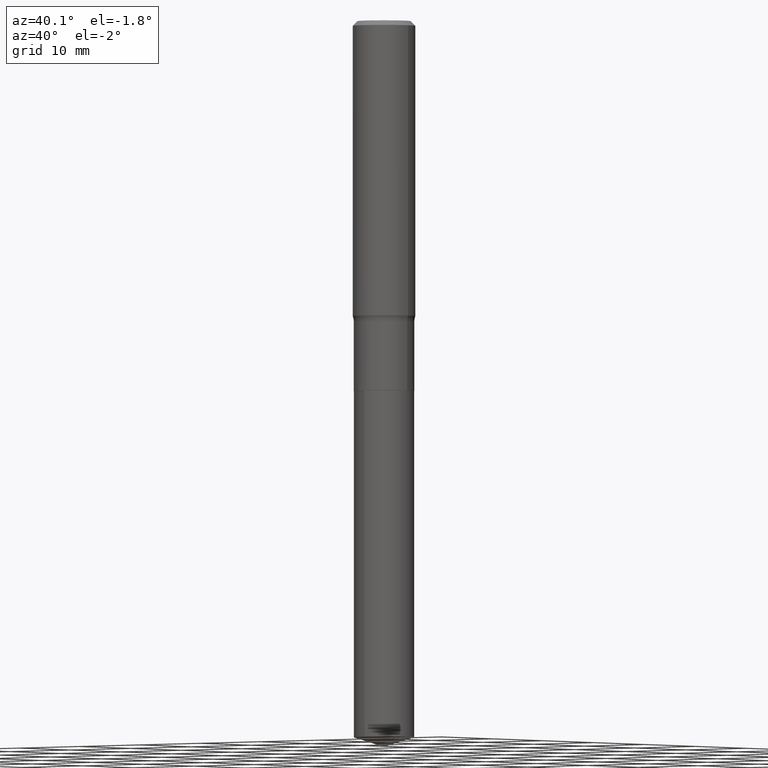
[diagram: clean part render]
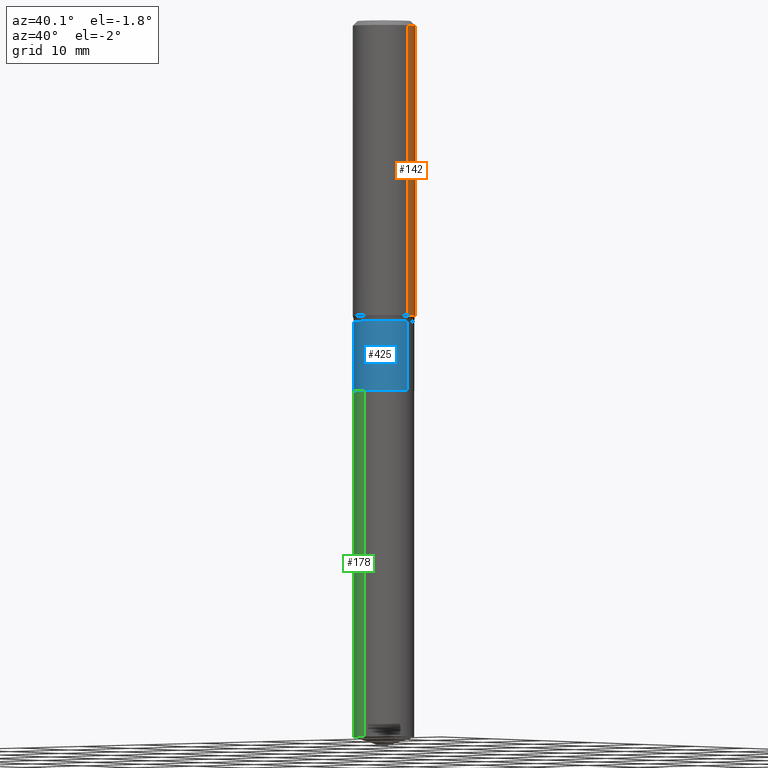
[diagram: same view with three faces highlighted in distinct colors, each labeled with its STEP entity id]
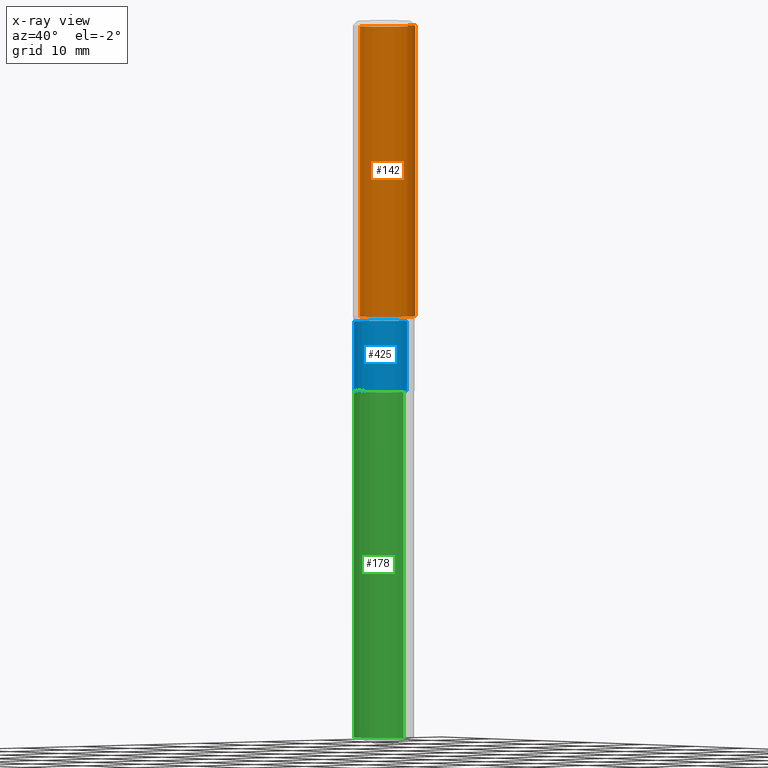
[diagram: x-ray of the same camera — body ghosted, the three highlighted faces saturated]
A machine part, auxiliary view with three faces highlighted in distinct colors.
The next image is the same camera in x-ray (body ghosted, the three faces saturated) — at least one of them is partly hidden behind the body in this view.
Their STEP definitions:

[orange] entity #142 — the highlighted cylindrical surface (edge-blend (fillet) strip) has radius 3.9688 mm, axis along (-0, 0, 1).
#4 = CARTESIAN_POINT ( 'NONE',  ( 3.603318810622414011E-29, -5.144584283132411729E-15, -1.473467500999733115 ) ) ;
#5 = CARTESIAN_POINT ( 'NONE',  ( 0.000000000000000000, 0.000000000000000000, 0.000000000000000000 ) ) ;
#15 = CARTESIAN_POINT ( 'NONE',  ( -0.1562500000000000000, -1.502984913880617145E-15, -0.02343750000000013878 ) ) ;
#16 = DIRECTION ( 'NONE',  ( 1.000000000000000000, -6.982962677686266711E-15, 0.000000000000000000 ) ) ;
#19 = EDGE_CURVE ( 'NONE', #161, #153, #341, .T. ) ;
#35 = CYLINDRICAL_SURFACE ( 'NONE', #331, 0.1562500000000000833 ) ;
#42 = ORIENTED_EDGE ( 'NONE', *, *, #19, .T. ) ;
#61 = CIRCLE ( 'NONE', #367, 0.1562500000000000000 ) ;
#86 = CARTESIAN_POINT ( 'NONE',  ( -0.1562500000000000833, 1.110223024625157132E-15, -7.685836078523293962E-30 ) ) ;
#95 = CARTESIAN_POINT ( 'NONE',  ( 0.1562500000000000000, -1.172919512267615999E-15, -0.02343750000000013878 ) ) ;
#122 = DIRECTION ( 'NONE',  ( -2.445468806185136597E-29, 3.491481338843145583E-15, 1.000000000000000000 ) ) ;
#123 = DIRECTION ( 'NONE',  ( -2.445468806185136597E-29, 3.491481338843145583E-15, 1.000000000000000000 ) ) ;
#125 = DIRECTION ( 'NONE',  ( -2.445468806185136597E-29, 3.491481338843145583E-15, 1.000000000000000000 ) ) ;
#128 = EDGE_CURVE ( 'NONE', #415, #339, #61, .T. ) ;
#132 = EDGE_CURVE ( 'NONE', #153, #339, #310, .T. ) ;
#137 = AXIS2_PLACEMENT_3D ( 'NONE', #4, #123, #200 ) ;
#142 = ADVANCED_FACE ( 'NONE', ( #202 ), #35, .T. ) ;
#153 = VERTEX_POINT ( 'NONE', #272 ) ;
#161 = VERTEX_POINT ( 'NONE', #266 ) ;
#172 = CARTESIAN_POINT ( 'NONE',  ( 5.731567514496448055E-31, -8.183159387913671455E-17, -0.02343750000000013878 ) ) ;
#200 = DIRECTION ( 'NONE',  ( 1.000000000000000000, -6.982962677686269077E-15, 0.000000000000000000 ) ) ;
#202 = FACE_OUTER_BOUND ( 'NONE', #203, .T. ) ;
#203 = EDGE_LOOP ( 'NONE', ( #42, #366, #413, #486 ) ) ;
#209 = DIRECTION ( 'NONE',  ( -2.445468806185136877E-29, 3.491481338843145188E-15, 1.000000000000000000 ) ) ;
#266 = CARTESIAN_POINT ( 'NONE',  ( 0.1562500000000001388, -6.235672201520892481E-15, -1.473467500999733115 ) ) ;
#272 = CARTESIAN_POINT ( 'NONE',  ( -0.1562500000000001388, -4.034361258507254400E-15, -1.473467500999733115 ) ) ;
#282 = CARTESIAN_POINT ( 'NONE',  ( 0.1562500000000000833, -1.091087918388479765E-15, 7.619026212181153180E-30 ) ) ;
#310 = LINE ( 'NONE', #86, #377 ) ;
#318 = DIRECTION ( 'NONE',  ( -2.445468806185136877E-29, 3.491481338843145188E-15, 1.000000000000000000 ) ) ;
#330 = EDGE_CURVE ( 'NONE', #161, #415, #469, .T. ) ;
#331 = AXIS2_PLACEMENT_3D ( 'NONE', #5, #122, #414 ) ;
#339 = VERTEX_POINT ( 'NONE', #15 ) ;
#341 = CIRCLE ( 'NONE', #137, 0.1562500000000001388 ) ;
#366 = ORIENTED_EDGE ( 'NONE', *, *, #132, .T. ) ;
#367 = AXIS2_PLACEMENT_3D ( 'NONE', #172, #125, #16 ) ;
#377 = VECTOR ( 'NONE', #318, 39.37007874015748143 ) ;
#413 = ORIENTED_EDGE ( 'NONE', *, *, #128, .F. ) ;
#414 = DIRECTION ( 'NONE',  ( 1.000000000000000000, -6.982962677686266711E-15, 4.876176775795935232E-29 ) ) ;
#415 = VERTEX_POINT ( 'NONE', #95 ) ;
#469 = LINE ( 'NONE', #282, #483 ) ;
#483 = VECTOR ( 'NONE', #209, 39.37007874015748143 ) ;
#486 = ORIENTED_EDGE ( 'NONE', *, *, #330, .F. ) ;

[blue] entity #425 — the highlighted cylindrical surface (edge-blend (fillet) strip) has radius 3.8354 mm, axis along (-0, 0, 1).
#11 = CARTESIAN_POINT ( 'NONE',  ( 0.1509999999999999676, -6.297235742737493798E-15, -1.501600000000000268 ) ) ;
#14 = AXIS2_PLACEMENT_3D ( 'NONE', #260, #217, #101 ) ;
#30 = CARTESIAN_POINT ( 'NONE',  ( 0.1509999999999999953, -7.508081471048297583E-15, -1.848400000000000487 ) ) ;
#39 = VERTEX_POINT ( 'NONE', #370 ) ;
#48 = LINE ( 'NONE', #211, #384 ) ;
#53 = ORIENTED_EDGE ( 'NONE', *, *, #328, .T. ) ;
#88 = CARTESIAN_POINT ( 'NONE',  ( -0.1509999999999999676, 1.072919530997751050E-15, -7.427591986284906212E-30 ) ) ;
#96 = CARTESIAN_POINT ( 'NONE',  ( 0.000000000000000000, 0.000000000000000000, 0.000000000000000000 ) ) ;
#101 = DIRECTION ( 'NONE',  ( 1.000000000000000000, -6.982962677686263555E-15, 0.000000000000000000 ) ) ;
#105 = FACE_OUTER_BOUND ( 'NONE', #409, .T. ) ;
#118 = EDGE_CURVE ( 'NONE', #221, #379, #302, .T. ) ;
#162 = ORIENTED_EDGE ( 'NONE', *, *, #459, .F. ) ;
#211 = CARTESIAN_POINT ( 'NONE',  ( 0.1509999999999999676, -1.054427364330626021E-15, 7.363026931451862094E-30 ) ) ;
#213 = DIRECTION ( 'NONE',  ( 1.000000000000000000, -6.982962677686269077E-15, 0.000000000000000000 ) ) ;
#217 = DIRECTION ( 'NONE',  ( -2.445468806185136597E-29, 3.491481338843145583E-15, 1.000000000000000000 ) ) ;
#221 = VERTEX_POINT ( 'NONE', #460 ) ;
#236 = DIRECTION ( 'NONE',  ( -2.445468806185136597E-29, 3.491481338843145583E-15, 1.000000000000000000 ) ) ;
#240 = AXIS2_PLACEMENT_3D ( 'NONE', #96, #396, #477 ) ;
#248 = AXIS2_PLACEMENT_3D ( 'NONE', #391, #236, #213 ) ;
#251 = CYLINDRICAL_SURFACE ( 'NONE', #240, 0.1509999999999999676 ) ;
#260 = CARTESIAN_POINT ( 'NONE',  ( 3.672115959367601524E-29, -5.242808378406868566E-15, -1.501600000000000268 ) ) ;
#283 = DIRECTION ( 'NONE',  ( -2.445468806185136877E-29, 3.491481338843145188E-15, 1.000000000000000000 ) ) ;
#294 = VERTEX_POINT ( 'NONE', #11 ) ;
#295 = EDGE_CURVE ( 'NONE', #221, #39, #394, .T. ) ;
#302 = CIRCLE ( 'NONE', #248, 0.1509999999999999953 ) ;
#309 = VECTOR ( 'NONE', #283, 39.37007874015748143 ) ;
#328 = EDGE_CURVE ( 'NONE', #379, #294, #48, .T. ) ;
#334 = ORIENTED_EDGE ( 'NONE', *, *, #295, .F. ) ;
#342 = CIRCLE ( 'NONE', #14, 0.1509999999999999676 ) ;
#344 = DIRECTION ( 'NONE',  ( -2.445468806185136877E-29, 3.491481338843145188E-15, 1.000000000000000000 ) ) ;
#370 = CARTESIAN_POINT ( 'NONE',  ( -0.1509999999999999676, -4.775311711564519013E-15, -1.501600000000000268 ) ) ;
#379 = VERTEX_POINT ( 'NONE', #30 ) ;
#384 = VECTOR ( 'NONE', #344, 39.37007874015748143 ) ;
#391 = CARTESIAN_POINT ( 'NONE',  ( 4.520204541352607869E-29, -6.453654106717671562E-15, -1.848400000000000487 ) ) ;
#394 = LINE ( 'NONE', #88, #309 ) ;
#396 = DIRECTION ( 'NONE',  ( -2.445468806185136597E-29, 3.491481338843145583E-15, 1.000000000000000000 ) ) ;
#409 = EDGE_LOOP ( 'NONE', ( #334, #462, #53, #162 ) ) ;
#425 = ADVANCED_FACE ( 'NONE', ( #105 ), #251, .T. ) ;
#459 = EDGE_CURVE ( 'NONE', #39, #294, #342, .T. ) ;
#460 = CARTESIAN_POINT ( 'NONE',  ( -0.1509999999999999953, -4.775311711564519013E-15, -1.848400000000000487 ) ) ;
#462 = ORIENTED_EDGE ( 'NONE', *, *, #118, .T. ) ;
#477 = DIRECTION ( 'NONE',  ( 1.000000000000000000, -6.982962677686266711E-15, 4.876176775795936353E-29 ) ) ;

[green] entity #178 — the highlighted cylindrical surface (edge-blend (fillet) strip) has radius 3.8354 mm, axis along (-0, 0, 1).
#3 = DIRECTION ( 'NONE',  ( -2.445468183589495391E-29, 3.491482230435539651E-15, 1.000000000000000000 ) ) ;
#7 = VECTOR ( 'NONE', #129, 39.37007874015748143 ) ;
#70 = VERTEX_POINT ( 'NONE', #277 ) ;
#100 = AXIS2_PLACEMENT_3D ( 'NONE', #242, #353, #430 ) ;
#115 = VERTEX_POINT ( 'NONE', #388 ) ;
#120 = ORIENTED_EDGE ( 'NONE', *, *, #243, .T. ) ;
#129 = DIRECTION ( 'NONE',  ( -2.445468183589495391E-29, 3.491482230435539651E-15, 1.000000000000000000 ) ) ;
#138 = CIRCLE ( 'NONE', #100, 0.1509999999999999953 ) ;
#175 = DIRECTION ( 'NONE',  ( -2.445468183589495391E-29, 3.491482230435539651E-15, 1.000000000000000000 ) ) ;
#177 = VECTOR ( 'NONE', #350, 39.37007874015748143 ) ;
#178 = ADVANCED_FACE ( 'NONE', ( #371 ), #416, .T. ) ;
#183 = ORIENTED_EDGE ( 'NONE', *, *, #336, .F. ) ;
#223 = AXIS2_PLACEMENT_3D ( 'NONE', #235, #3, #490 ) ;
#235 = CARTESIAN_POINT ( 'NONE',  ( 4.521427275755699550E-29, -6.455399847387092276E-15, -1.848900000000000432 ) ) ;
#242 = CARTESIAN_POINT ( 'NONE',  ( 8.748394289993295297E-29, -1.249039155894768275E-14, -3.577389882879273841 ) ) ;
#243 = EDGE_CURVE ( 'NONE', #305, #478, #138, .T. ) ;
#245 = CARTESIAN_POINT ( 'NONE',  ( 1.072919530997796410E-15, 0.1509999999999935560, -1.848900000000000876 ) ) ;
#252 = EDGE_CURVE ( 'NONE', #478, #70, #346, .T. ) ;
#263 = AXIS2_PLACEMENT_3D ( 'NONE', #449, #175, #297 ) ;
#273 = EDGE_LOOP ( 'NONE', ( #183, #120, #381, #456 ) ) ;
#277 = CARTESIAN_POINT ( 'NONE',  ( -1.054427364330580859E-15, -0.1510000000000064346, -1.848899999999999766 ) ) ;
#284 = CARTESIAN_POINT ( 'NONE',  ( -1.054427364330580859E-15, -0.1510000000000064624, -1.848899999999999766 ) ) ;
#296 = CIRCLE ( 'NONE', #263, 0.1509999999999999953 ) ;
#297 = DIRECTION ( 'NONE',  ( -6.982962677686265133E-15, -1.000000000000000000, 3.618341713462600054E-15 ) ) ;
#305 = VERTEX_POINT ( 'NONE', #468 ) ;
#336 = EDGE_CURVE ( 'NONE', #305, #115, #390, .T. ) ;
#346 = LINE ( 'NONE', #284, #7 ) ;
#350 = DIRECTION ( 'NONE',  ( -2.445468183589495391E-29, 3.491482230435539651E-15, 1.000000000000000000 ) ) ;
#353 = DIRECTION ( 'NONE',  ( -2.445468183589495391E-29, 3.491482230435539651E-15, 1.000000000000000000 ) ) ;
#371 = FACE_OUTER_BOUND ( 'NONE', #273, .T. ) ;
#381 = ORIENTED_EDGE ( 'NONE', *, *, #252, .T. ) ;
#388 = CARTESIAN_POINT ( 'NONE',  ( 1.072919530997839008E-15, 0.1509999999999935283, -1.848900000000000876 ) ) ;
#390 = LINE ( 'NONE', #245, #177 ) ;
#399 = CARTESIAN_POINT ( 'NONE',  ( -1.054427364330538457E-15, -0.1510000000000124853, -3.577389882879273397 ) ) ;
#416 = CYLINDRICAL_SURFACE ( 'NONE', #223, 0.1509999999999999953 ) ;
#430 = DIRECTION ( 'NONE',  ( -6.982962677686266711E-15, -1.000000000000000000, 3.618341713462600054E-15 ) ) ;
#449 = CARTESIAN_POINT ( 'NONE',  ( 4.521427275755699550E-29, -6.455399847387092276E-15, -1.848900000000000432 ) ) ;
#456 = ORIENTED_EDGE ( 'NONE', *, *, #466, .F. ) ;
#466 = EDGE_CURVE ( 'NONE', #115, #70, #296, .T. ) ;
#468 = CARTESIAN_POINT ( 'NONE',  ( 1.072919530997838614E-15, 0.1509999999999874776, -3.577389882879274285 ) ) ;
#478 = VERTEX_POINT ( 'NONE', #399 ) ;
#490 = DIRECTION ( 'NONE',  ( -6.982962677686266711E-15, -1.000000000000000000, 3.618341713462600054E-15 ) ) ;